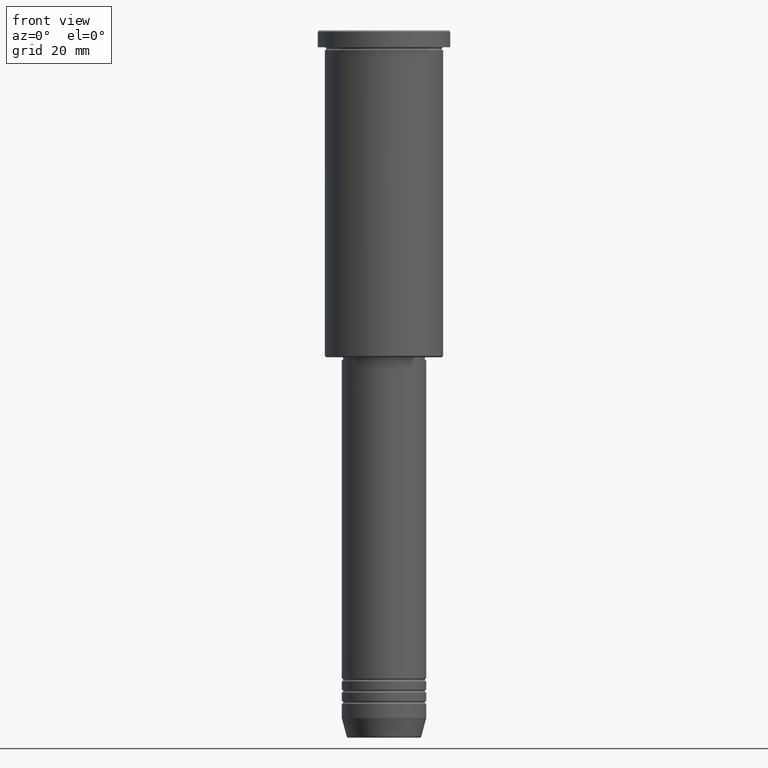
[diagram: clean part render]
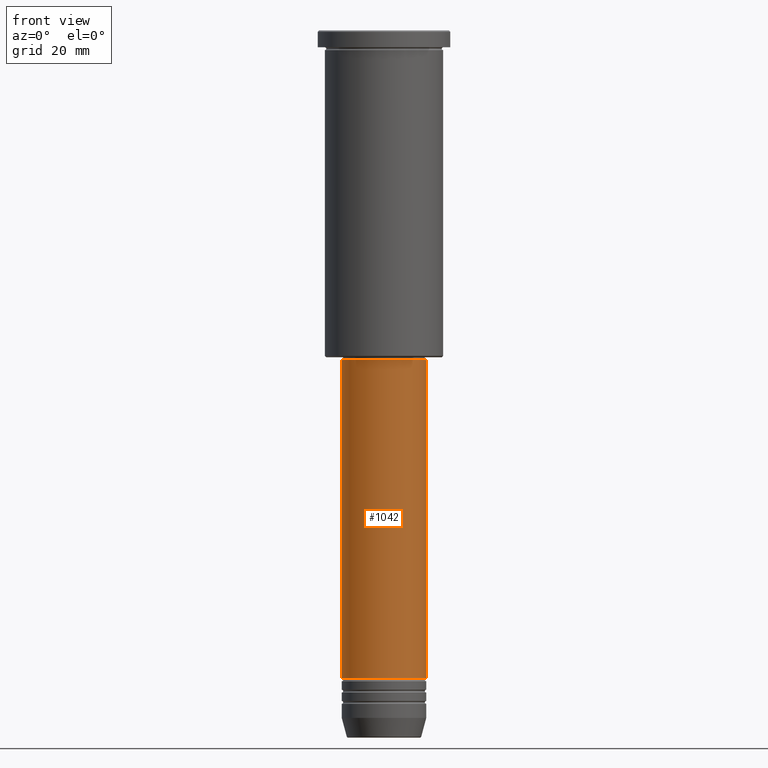
[diagram: same view with one face highlighted and labeled with its STEP entity id]
A machine part, front view. The second image highlights one B-rep face of the part: STEP entity #1042.
In plain terms, the highlighted cylindrical surface (partial cylindrical patch) has radius 15 mm, axis along (-0, -0, 1).
Its self-contained STEP definition (entity closure, byte-faithful):
#2 = CYLINDRICAL_SURFACE ( 'NONE', #1087, 15.00000000000000000 ) ;
#43 = DIRECTION ( 'NONE',  ( -0.000000000000000000, -0.000000000000000000, 1.000000000000000000 ) ) ;
#97 = FACE_OUTER_BOUND ( 'NONE', #344, .T. ) ;
#118 = EDGE_CURVE ( 'NONE', #293, #368, #402, .T. ) ;
#129 = CARTESIAN_POINT ( 'NONE',  ( -15.00000000000000000, 1.836970198721029589E-15, 0.000000000000000000 ) ) ;
#143 = CARTESIAN_POINT ( 'NONE',  ( -15.00000000000000000, 1.836970198721029589E-15, -229.9999999999998863 ) ) ;
#166 = CARTESIAN_POINT ( 'NONE',  ( 15.00000000000000000, 0.000000000000000000, -117.0000000000000142 ) ) ;
#204 = LINE ( 'NONE', #856, #209 ) ;
#209 = VECTOR ( 'NONE', #214, 1000.000000000000000 ) ;
#214 = DIRECTION ( 'NONE',  ( -0.000000000000000000, -0.000000000000000000, 1.000000000000000000 ) ) ;
#260 = CARTESIAN_POINT ( 'NONE',  ( 0.000000000000000000, 0.000000000000000000, -229.9999999999998863 ) ) ;
#262 = CARTESIAN_POINT ( 'NONE',  ( 0.000000000000000000, 0.000000000000000000, 0.000000000000000000 ) ) ;
#293 = VERTEX_POINT ( 'NONE', #143 ) ;
#344 = EDGE_LOOP ( 'NONE', ( #1143, #1037, #906, #1080 ) ) ;
#368 = VERTEX_POINT ( 'NONE', #1122 ) ;
#369 = DIRECTION ( 'NONE',  ( -0.000000000000000000, -0.000000000000000000, 1.000000000000000000 ) ) ;
#402 = CIRCLE ( 'NONE', #553, 15.00000000000000000 ) ;
#494 = AXIS2_PLACEMENT_3D ( 'NONE', #1059, #879, #1157 ) ;
#506 = VERTEX_POINT ( 'NONE', #1060 ) ;
#553 = AXIS2_PLACEMENT_3D ( 'NONE', #260, #720, #622 ) ;
#592 = VECTOR ( 'NONE', #43, 1000.000000000000000 ) ;
#622 = DIRECTION ( 'NONE',  ( 1.000000000000000000, 0.000000000000000000, 0.000000000000000000 ) ) ;
#650 = DIRECTION ( 'NONE',  ( 1.000000000000000000, 0.000000000000000000, 0.000000000000000000 ) ) ;
#720 = DIRECTION ( 'NONE',  ( -0.000000000000000000, -0.000000000000000000, 1.000000000000000000 ) ) ;
#822 = EDGE_CURVE ( 'NONE', #293, #506, #848, .T. ) ;
#848 = LINE ( 'NONE', #129, #592 ) ;
#856 = CARTESIAN_POINT ( 'NONE',  ( 15.00000000000000000, 0.000000000000000000, 0.000000000000000000 ) ) ;
#879 = DIRECTION ( 'NONE',  ( -0.000000000000000000, -0.000000000000000000, 1.000000000000000000 ) ) ;
#906 = ORIENTED_EDGE ( 'NONE', *, *, #1146, .T. ) ;
#949 = CIRCLE ( 'NONE', #494, 15.00000000000000000 ) ;
#953 = VERTEX_POINT ( 'NONE', #166 ) ;
#969 = EDGE_CURVE ( 'NONE', #506, #953, #949, .T. ) ;
#1037 = ORIENTED_EDGE ( 'NONE', *, *, #118, .T. ) ;
#1042 = ADVANCED_FACE ( 'NONE', ( #97 ), #2, .T. ) ;
#1059 = CARTESIAN_POINT ( 'NONE',  ( 0.000000000000000000, 0.000000000000000000, -117.0000000000000142 ) ) ;
#1060 = CARTESIAN_POINT ( 'NONE',  ( -15.00000000000000000, 1.836970198721029589E-15, -117.0000000000000142 ) ) ;
#1080 = ORIENTED_EDGE ( 'NONE', *, *, #969, .F. ) ;
#1087 = AXIS2_PLACEMENT_3D ( 'NONE', #262, #369, #650 ) ;
#1122 = CARTESIAN_POINT ( 'NONE',  ( 15.00000000000000000, 0.000000000000000000, -229.9999999999998863 ) ) ;
#1143 = ORIENTED_EDGE ( 'NONE', *, *, #822, .F. ) ;
#1146 = EDGE_CURVE ( 'NONE', #368, #953, #204, .T. ) ;
#1157 = DIRECTION ( 'NONE',  ( 1.000000000000000000, 0.000000000000000000, 0.000000000000000000 ) ) ;